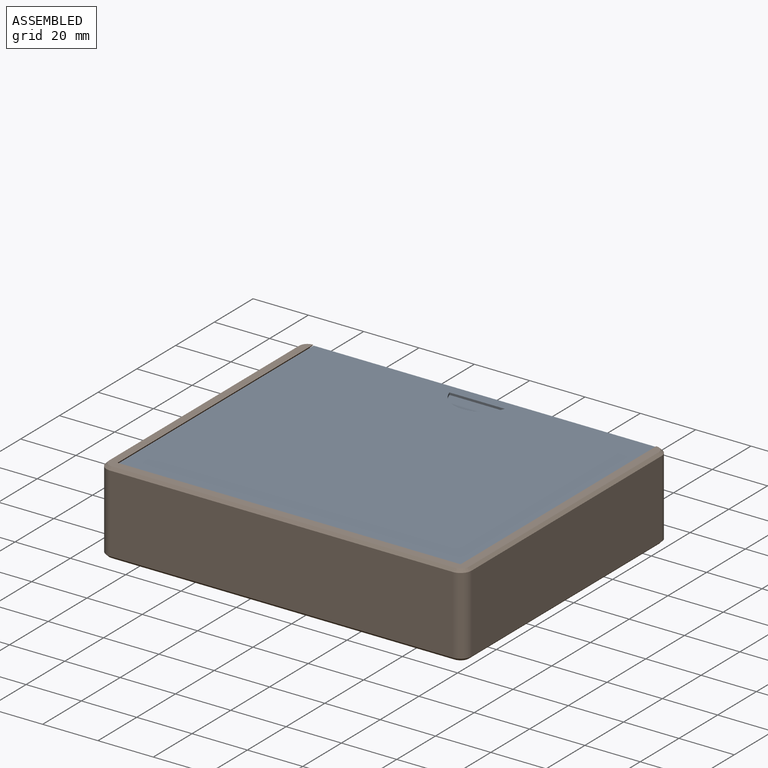
[diagram: assembled view]
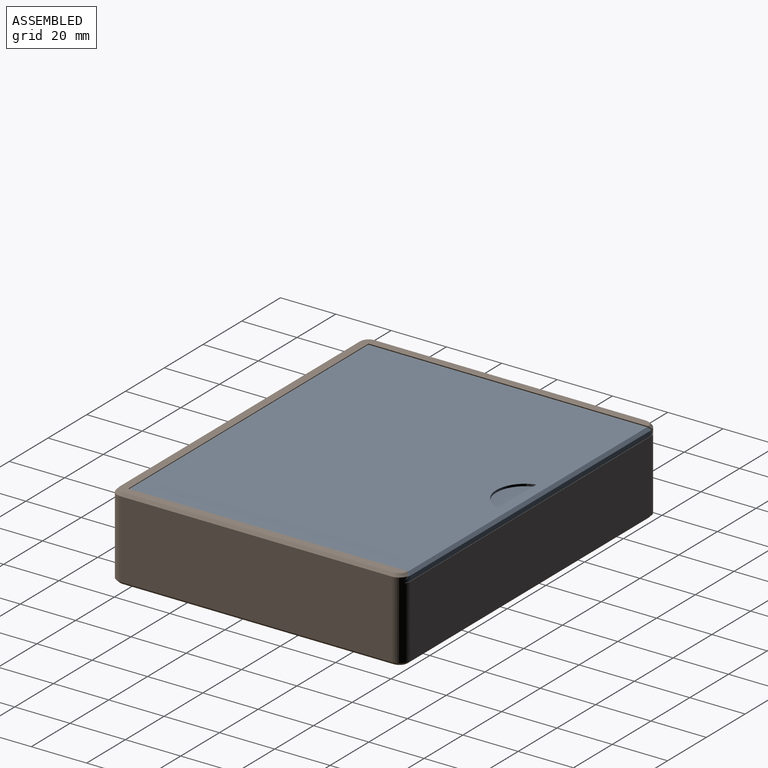
[diagram: assembled view, second angle]
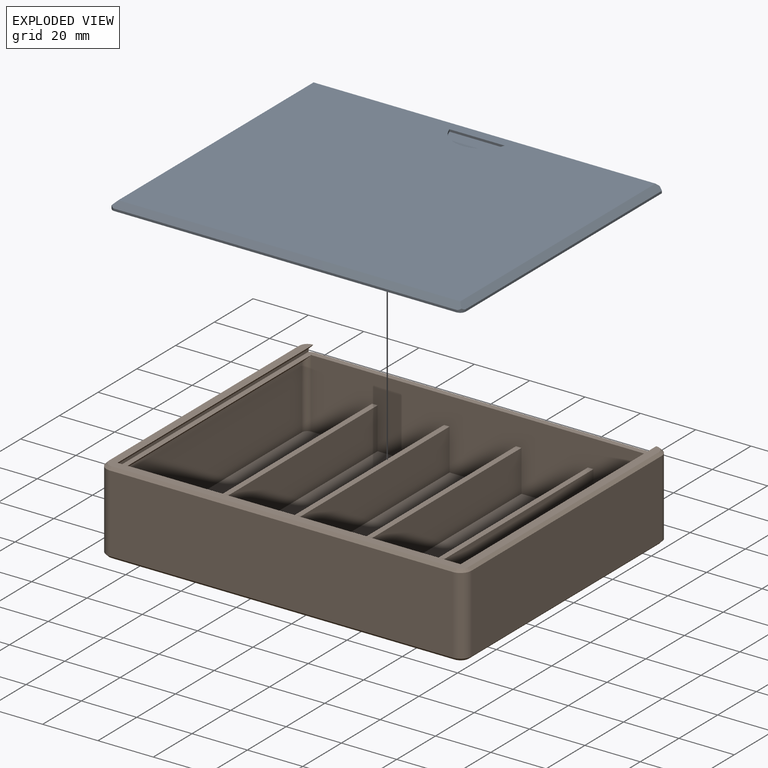
[diagram: exploded view]
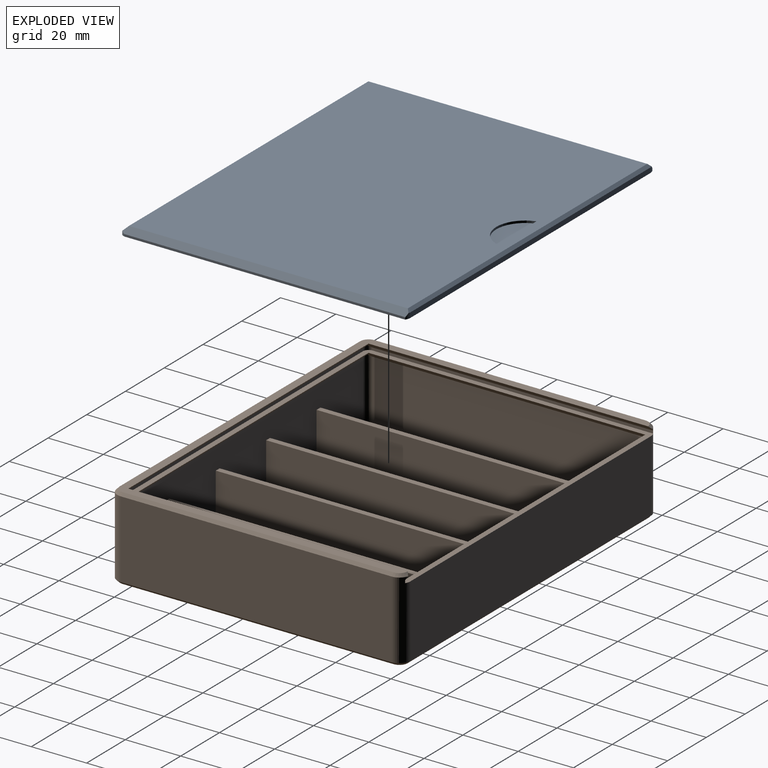
[diagram: exploded view, second angle]
ASSEMBLY  parts=2 mates=2
PART A: 17 faces, bbox 127.6x103.8x2.8 mm
  f0: plane 123.6x100.8mm, normal (0,0,1), area 12348.4mm2, adj f3,f4,f8,f13,f14,f16
  f1: plane 101.26x0.8mm, normal (1,0,0), area 81mm2, adj f3,f5,f9,f12
  f2: plane 101.26x0.8mm, normal (-1,0,0), area 81mm2, adj f4,f5,f10,f11
  f3: plane 103.11x2mm, normal (0.71,0,0.71), area 289mm2, adj f0,f1,f8,f9,f12,f16
  f4: plane 103.11x2mm, normal (-0.71,0,0.71), area 289mm2, adj f0,f2,f8,f10,f11,f16
  f5: plane 127.6x103.8mm, normal (0,0,-1), area 13242.5mm2, adj f1,f2,f6,f7,f9,f10,f11,f12
  f6: plane 123.6x1.8mm, normal (0,-1,0), area 222.5mm2, adj f5,f11,f12,f16
  f7: plane 123.6x0.8mm, normal (0,1,0), area 98.9mm2, adj f5,f8,f9,f10
  f8: plane 126.43x2mm, normal (0,0.71,0.71), area 354mm2, adj f0,f3,f4,f7,f9,f10
  f9: cylinder r=2mm len=2mm, axis (0,0,1), area 3.1mm2, adj f1,f3,f5,f7,f8
  f10: cylinder r=2mm len=2mm, axis (0,0,-1), area 3.1mm2, adj f2,f4,f5,f7,f8
  f11: cylinder r=4mm len=2mm, axis (0,0,-1), area 3.3mm2, adj f2,f4,f5,f6,f16
  f12: cylinder r=4mm len=2mm, axis (0,0,-1), area 3.3mm2, adj f1,f3,f5,f6,f16
  f13: plane 20x0.8mm, normal (0,1,0), area 16mm2, adj f0,f14,f15
  f14: cylinder r=10.42mm len=20mm, axis (0,0,-1), area 21.5mm2, adj f0,f13,f15
  f15: plane 20x7.5mm, normal (0,0,1), area 110.5mm2, adj f13,f14
  f16: plane 125.4x1mm, normal (0,-0.71,0.71), area 176.1mm2, adj f0,f3,f4,f6,f11,f12
PART B: 62 faces, bbox 132.1x106.1x30.1 mm
  f0: plane 102x24mm, normal (0,0,1), area 2446.3mm2, adj f1,f14,f21,f27,f28,f60
  f1: plane 124x23mm, normal (0,1,0), area 2732mm2, adj f0,f2,f3,f4,f20,f24,f25,f27
  f2: plane 102x24mm, normal (0,0,1), area 2448mm2, adj f1,f14,f57,f59
  f3: plane 102x24mm, normal (0,0,1), area 2448mm2, adj f1,f14,f53,f56
  f4: plane 102x24mm, normal (0,0,1), area 2448mm2, adj f1,f14,f51,f54
  f5: plane 101.41x2mm, normal (-0.71,0,-0.71), area 283.9mm2, adj f21,f22,f24,f27,f28
  f6: plane 101.41x2mm, normal (0.71,0,-0.71), area 283.9mm2, adj f19,f22,f24,f25,f26
  f7: plane 124x1mm, normal (0,1,0), area 124mm2, adj f22,f23,f29,f30
  f8: plane 103.39x2.11mm, normal (0.71,0,-0.71), area 289.5mm2, adj f10,f12,f23,f30,f31,f41
  f9: plane 103.39x2.11mm, normal (-0.71,0,-0.71), area 289.5mm2, adj f10,f13,f23,f29,f32,f35
  f10: plane 130x104mm, normal (0,0,1), area 988.3mm2, adj f8,f9,f23,f35,f36,f37,f38,f39
  f11: plane 124x26mm, normal (0,1,0), area 3224mm2, adj f22,f31,f32,f46
  f12: plane 101.46x1mm, normal (1,0,0), area 101.5mm2, adj f8,f22,f30,f31
  f13: plane 101.46x1mm, normal (-1,0,0), area 101.5mm2, adj f9,f22,f29,f32
  f14: plane 124x25mm, normal (0,-1,0), area 2980mm2, adj f0,f2,f3,f4,f20,f22,f26,f28
  f15: plane 98x28mm, normal (-1,0,0), area 2744mm2, adj f31,f33,f40,f42
  f16: plane 130x104mm, normal (0,0,-1), area 13512.3mm2, adj f42,f43,f44,f45,f46,f47,f48,f49
  f17: plane 98x28mm, normal (1,0,0), area 2744mm2, adj f32,f34,f36,f49
  f18: plane 124x28mm, normal (0,-1,0), area 3472mm2, adj f33,f34,f38,f45
  f19: plane 98x23mm, normal (1,0,0), area 2254mm2, adj f6,f20,f25,f26
  f20: plane 102x24mm, normal (0,0,1), area 2446.3mm2, adj f1,f14,f19,f25,f26,f50
  f21: plane 98x23mm, normal (-1,0,0), area 2254mm2, adj f0,f5,f27,f28
  f22: plane 128x104mm, normal (0,0,1), area 909.6mm2, adj f5,f6,f7,f11,f12,f13,f14,f24
  f23: plane 126.83x2mm, normal (0,0.71,-0.71), area 355.2mm2, adj f7,f8,f9,f10,f29,f30
  f24: plane 126.83x2mm, normal (0,0.71,-0.71), area 355.2mm2, adj f1,f5,f6,f22,f25,f27
  f25: cylinder r=2mm len=23.59mm, axis (0,0,-1), area 72.9mm2, adj f1,f6,f19,f20,f24
  f26: cylinder r=2mm len=25mm, axis (0,0,1), area 74.5mm2, adj f6,f14,f19,f20
  f27: cylinder r=2mm len=23.59mm, axis (0,0,1), area 72.9mm2, adj f0,f1,f5,f21,f24
  f28: cylinder r=2mm len=25mm, axis (0,0,-1), area 74.5mm2, adj f0,f5,f14,f21
  f29: cylinder r=2mm len=2mm, axis (0,0,1), area 3.8mm2, adj f7,f9,f13,f22,f23
  f30: cylinder r=2mm len=2mm, axis (0,0,-1), area 3.8mm2, adj f7,f8,f12,f22,f23
  f31: cylinder r=4mm len=28mm, axis (0,0,-1), area 172.3mm2, adj f8,f11,f12,f15,f22,f41,f44
  f32: cylinder r=4mm len=28mm, axis (0,0,1), area 172.3mm2, adj f9,f11,f13,f17,f22,f35,f48
  f33: cylinder r=4mm len=28mm, axis (0,0,1), area 175.9mm2, adj f15,f18,f39,f43
  f34: cylinder r=4mm len=28mm, axis (0,0,-1), area 175.9mm2, adj f17,f18,f37,f47
  f35: cone r=3mm half-angle=45deg, axis (0,0,-1), area 7.1mm2, adj f9,f10,f32,f36
  f36: plane 98x1mm, normal (0.71,0,0.71), area 138.6mm2, adj f10,f17,f35,f37
  f37: cone r=3mm half-angle=45deg, axis (0,0,-1), area 7.8mm2, adj f10,f34,f36,f38
  f38: plane 124x1mm, normal (0,-0.71,0.71), area 175.4mm2, adj f10,f18,f37,f39
  f39: cone r=3mm half-angle=45deg, axis (0,0,-1), area 7.8mm2, adj f10,f33,f38,f40
  f40: plane 98x1mm, normal (-0.71,0,0.71), area 138.6mm2, adj f10,f15,f39,f41
  f41: cone r=3mm half-angle=45deg, axis (0,0,-1), area 7.1mm2, adj f8,f10,f31,f40
  f42: plane 98x1mm, normal (-0.71,0,-0.71), area 138.6mm2, adj f15,f16,f43,f44
  f43: cone r=3mm half-angle=45deg, axis (0,0,1), area 7.8mm2, adj f16,f33,f42,f45
  f44: cone r=3mm half-angle=45deg, axis (0,0,1), area 7.8mm2, adj f16,f31,f42,f46
  f45: plane 124x1mm, normal (0,-0.71,-0.71), area 175.4mm2, adj f16,f18,f43,f47
  f46: plane 124x1mm, normal (0,0.71,-0.71), area 175.4mm2, adj f11,f16,f44,f48
  f47: cone r=3mm half-angle=45deg, axis (0,0,1), area 7.8mm2, adj f16,f34,f45,f49
  f48: cone r=3mm half-angle=45deg, axis (0,0,1), area 7.8mm2, adj f16,f32,f46,f49
  f49: plane 98x1mm, normal (0.71,0,-0.71), area 138.6mm2, adj f16,f17,f47,f48
  f50: plane 102x15mm, normal (-1,0,0), area 1530mm2, adj f1,f14,f20,f52
  f51: plane 102x15mm, normal (1,0,0), area 1530mm2, adj f1,f4,f14,f52
  f52: plane 102x2mm, normal (0,0,1), area 204mm2, adj f1,f14,f50,f51
  f53: plane 102x15mm, normal (1,0,0), area 1530mm2, adj f1,f3,f14,f55
  f54: plane 102x15mm, normal (-1,0,0), area 1530mm2, adj f1,f4,f14,f55
  f55: plane 102x2mm, normal (0,0,1), area 204mm2, adj f1,f14,f53,f54
  f56: plane 102x15mm, normal (-1,0,0), area 1530mm2, adj f1,f3,f14,f58
  f57: plane 102x15mm, normal (1,0,0), area 1530mm2, adj f1,f2,f14,f58
  f58: plane 102x2mm, normal (0,0,1), area 204mm2, adj f1,f14,f56,f57
  f59: plane 102x15mm, normal (-1,0,0), area 1530mm2, adj f1,f2,f14,f61
  f60: plane 102x15mm, normal (1,0,0), area 1530mm2, adj f0,f1,f14,f61
  f61: plane 102x2mm, normal (0,0,1), area 204mm2, adj f1,f14,f59,f60
PLACE A rot(axis=(0,0,-1),180deg) t=(-14.27,-71.41,-0.99)mm
PLACE B t=(-14.27,32.5,-27.99)mm fixed
MATE planar B.f22 <-> A.f5  axis (0,0,1) through (47.73,-19.5,-0.99)mm
MATE slider B.f9 <-> A.f4  axis (-0.71,0,-0.71) through (48.73,-19.11,1.01)mm
